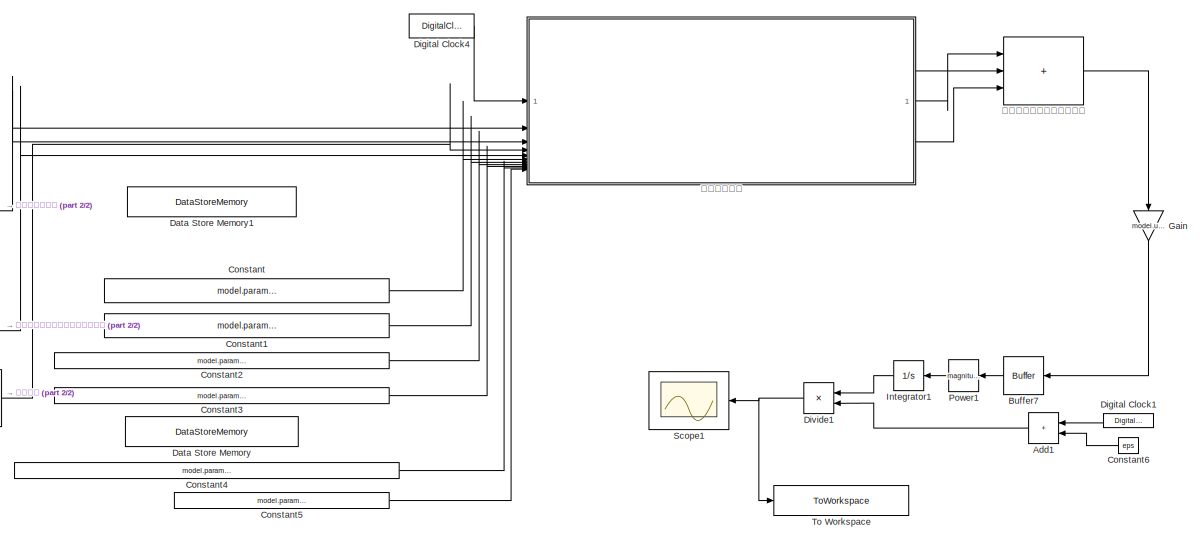
[diagram: root canvas - part 1/2, center side, full height]
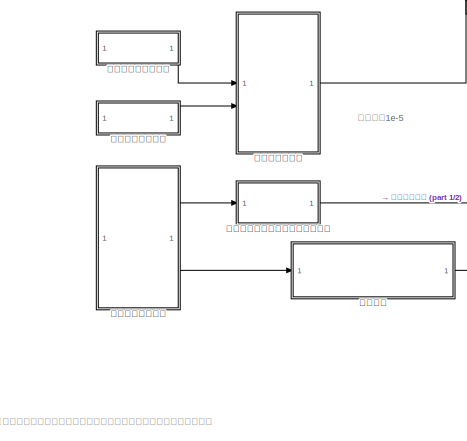
[diagram: root canvas - part 2/2, left side, full height]
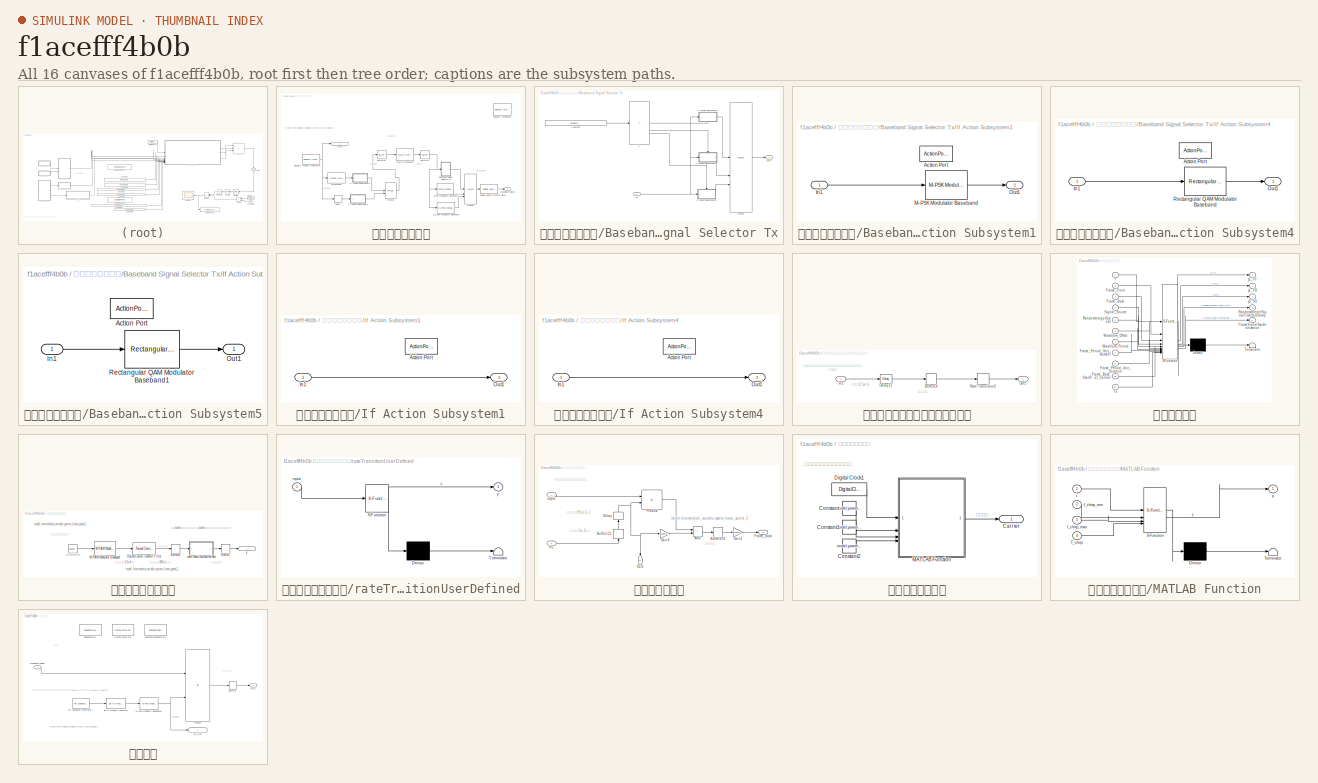
[diagram: thumbnail index - all 16 canvases of the model, root first then tree order]
MODEL slx_f1acefff4b0b
KIND model
CONFIG AbsTol = auto
CONFIG EnableMultiTasking = off
CONFIG FixedStep = auto
CONFIG InitFcn = Parameter_Initialize_6
CONFIG MaxStep = auto
CONFIG MinStep = auto
CONFIG RelTol = 1e-3
CONFIG SampleTimeConstraint = Unconstrained
CONFIG SolverName = VariableStepAuto
CONFIG StartTime = 0.0
CONFIG StopTime = 0.1
BLOCK [Sum] Add1
  IconShape = rectangular
  NameLocation = top
BLOCK [Buffer] Buffer7
  N = 1
  NameLocation = top
  OutputFrames = off
BLOCK [Constant] Constant
  Value = model.parameter.Transmit_timing_control.Waveform_Offset
BLOCK [Constant] Constant1
  Value = model.parameter.Transmit_timing_control.Waveform_Period
BLOCK [Constant] Constant2
  Value = model.parameter.Transmit_timing_control.Frame_Period_Unit_Number
BLOCK [Constant] Constant3
  Value = model.parameter.Transmit_timing_control.Frame_Period_Unit_Duration
BLOCK [Constant] Constant4
  Value = model.parameter.Transmit_timing_control.Frame_Back_StartPoint_Offset_Control
BLOCK [Constant] Constant5
  Value = model.parameter.Transmit_timing_control.Ts
BLOCK [Constant] Constant6
  NameLocation = top
  SampleTime = model.Intermediate_variable.system_frame_speed_3
  Value = eps
BLOCK [DataStoreMemory] Data Store Memory
  DataStoreName = Waveform_Generation_Flag_Transmit
  OutDataTypeStr = int8
  ShowAdditionalParam = off
  SignalType = real
  WriteAfterWriteMsg = warning
BLOCK [DataStoreMemory] Data Store Memory1
  DataStoreName = Waveform_Generation_Flag_Receive
  OutDataTypeStr = int8
  ShowAdditionalParam = off
  SignalType = real
  WriteAfterWriteMsg = warning
BLOCK [DigitalClock] Digital Clock1
  NameLocation = top
  SampleTime = model.Intermediate_variable.system_frame_speed_3
BLOCK [DigitalClock] Digital Clock4
  SampleTime = model.parameter.Digital_Clock4.Ts
BLOCK [Product] Divide1
  Inputs = */
  NameLocation = top
BLOCK [Gain] Gain
  Gain = model.user_defined.TR.Sig_power_controller_coeffience
  NameLocation = left
BLOCK [Integrator] Integrator1
  NameLocation = top
BLOCK [Math] Power1
  NameLocation = top
  Operator = magnitude^2
BLOCK [Scope] Scope1
  Floating = off
  NameLocation = top
  NumInputPorts = 1
  ScopeSpecificationString = Simulink.scopes.TimeScopeBlockCfg('CurrentConfiguration', extmgr.ConfigurationSet(extmgr.Configuration('Core','General UI',true),extmgr.Configuration('Core','Source UI',true),extmgr.Configuration('Sources','WiredSimulink',true),extmgr.Configuration('Visuals','Time Domain',true,'SerializedDisplays',{struct('MinYLimReal','-0.01829','MaxYLimReal','0.16458','YLabelReal','','MinYLimMag','0.00000','MaxY...<+1356ch>
BLOCK [ToWorkspace] To Workspace
  FixptAsFi = on
  MaxDataPoints = inf
  SampleTime = -1
  SaveFormat = Timeseries
  VariableName = power_estimation_result
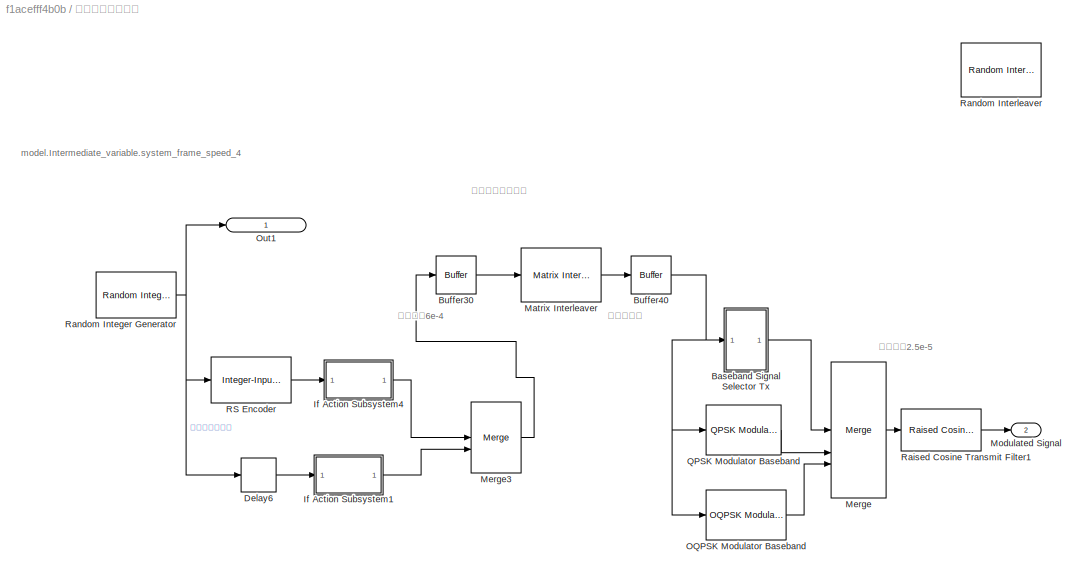
BLOCK [SubSystem] 信源部分基带调制
BLOCK [SubSystem] 信源部分基带调制/Baseband Signal Selector Tx
BLOCK [Constant] 信源部分基带调制/Baseband Signal Selector Tx/Constant
  Value = model.user_defined.TR.Baseband_Modulation_type
BLOCK [If] 信源部分基带调制/Baseband Signal Selector Tx/If
  ElseIfExpressions = u1 == 2
  IfExpression = u1 == 1
BLOCK [SubSystem] 信源部分基带调制/Baseband Signal Selector Tx/If Action Subsystem1
  TreatAsAtomicUnit = on
BLOCK [ActionPort] 信源部分基带调制/Baseband Signal Selector Tx/If Action Subsystem1/Action Port
  ActionPortLabel = elseif(u1 == 2)
BLOCK [Inport] 信源部分基带调制/Baseband Signal Selector Tx/If Action Subsystem1/In1
BLOCK [Reference] 信源部分基带调制/Baseband Signal Selector Tx/If Action Subsystem1/M-PSK Modulator Baseband  REF=commdigbbndpm3/M-PSK
Modulator
Baseband
  SourceBlock = commdigbbndpm3/M-PSK\nModulator\nBaseband
  SourceType = M-PSK Modulator Baseband
BLOCK [Outport] 信源部分基带调制/Baseband Signal Selector Tx/If Action Subsystem1/Out1
BLOCK [SubSystem] 信源部分基带调制/Baseband Signal Selector Tx/If Action Subsystem4
  TreatAsAtomicUnit = on
BLOCK [ActionPort] 信源部分基带调制/Baseband Signal Selector Tx/If Action Subsystem4/Action Port
  ActionPortLabel = if(u1 == 1)
BLOCK [Inport] 信源部分基带调制/Baseband Signal Selector Tx/If Action Subsystem4/In1
BLOCK [Outport] 信源部分基带调制/Baseband Signal Selector Tx/If Action Subsystem4/Out1
BLOCK [Reference] 信源部分基带调制/Baseband Signal Selector Tx/If Action Subsystem4/Rectangular QAM Modulator Baseband  REF=commdigbbndam3/Rectangular QAM
Modulator
Baseband
  LibrarySourceBlock = commhdldigbbndam/Rectangular QAM\nModulator\nBaseband
  SourceBlock = commdigbbndam3/Rectangular QAM\nModulator\nBaseband
  SourceType = Rectangular QAM Modulator Baseband
BLOCK [SubSystem] 信源部分基带调制/Baseband Signal Selector Tx/If Action Subsystem5
  TreatAsAtomicUnit = on
BLOCK [ActionPort] 信源部分基带调制/Baseband Signal Selector Tx/If Action Subsystem5/Action Port
  ActionPortLabel = else
BLOCK [Inport] 信源部分基带调制/Baseband Signal Selector Tx/If Action Subsystem5/In1
BLOCK [Outport] 信源部分基带调制/Baseband Signal Selector Tx/If Action Subsystem5/Out1
BLOCK [Reference] 信源部分基带调制/Baseband Signal Selector Tx/If Action Subsystem5/Rectangular QAM Modulator Baseband1  REF=commdigbbndam3/Rectangular QAM
Modulator
Baseband
  LibrarySourceBlock = commhdldigbbndam/Rectangular QAM\nModulator\nBaseband
  SourceBlock = commdigbbndam3/Rectangular QAM\nModulator\nBaseband
  SourceType = Rectangular QAM Modulator Baseband
BLOCK [Inport] 信源部分基带调制/Baseband Signal Selector Tx/In1
BLOCK [Merge] 信源部分基带调制/Baseband Signal Selector Tx/Merge
  Inputs = 3
BLOCK [Outport] 信源部分基带调制/Baseband Signal Selector Tx/Out1
BLOCK [Buffer] 信源部分基带调制/Buffer30
  N = model.parameter.Buffer30.Output_buffer_size
  OutputFrames = off
BLOCK [Buffer] 信源部分基带调制/Buffer40
  N = model.parameter.Buffer40.Output_buffer_size
  OutputFrames = off
BLOCK [Delay] 信源部分基带调制/Delay6
  Commented = on
  DelayLength = 0
  InitialCondition = 0
  InputPortMap = u0
BLOCK [SubSystem] 信源部分基带调制/If Action Subsystem1
  TreatAsAtomicUnit = on
BLOCK [ActionPort] 信源部分基带调制/If Action Subsystem1/Action Port
BLOCK [Inport] 信源部分基带调制/If Action Subsystem1/In1
BLOCK [Outport] 信源部分基带调制/If Action Subsystem1/Out1
BLOCK [SubSystem] 信源部分基带调制/If Action Subsystem4
  TreatAsAtomicUnit = on
BLOCK [ActionPort] 信源部分基带调制/If Action Subsystem4/Action Port
BLOCK [Inport] 信源部分基带调制/If Action Subsystem4/In1
BLOCK [Outport] 信源部分基带调制/If Action Subsystem4/Out1
BLOCK [Reference] 信源部分基带调制/Matrix Interleaver  REF=commblkintrlv2/Matrix
Interleaver
  SourceBlock = commblkintrlv2/Matrix\nInterleaver
  SourceType = Matrix Interleaver
  StatePerturbationForJacobian = 1.0e-05
BLOCK [Merge] 信源部分基带调制/Merge
  Inputs = 3
BLOCK [Merge] 信源部分基带调制/Merge3
BLOCK [Outport] 信源部分基带调制/Modulated Signal
  Port = 2
BLOCK [Reference] 信源部分基带调制/OQPSK Modulator Baseband  REF=commdigbbndpm3/OQPSK
Modulator
Baseband
  Commented = on
  SourceBlock = commdigbbndpm3/OQPSK\nModulator\nBaseband
  SourceType = OQPSK Modulator Baseband
  UserDataPersistent = on
BLOCK [Outport] 信源部分基带调制/Out1
  IconDisplay = Signal name
BLOCK [Reference] 信源部分基带调制/QPSK Modulator Baseband  REF=commdigbbndpm3/QPSK
Modulator
Baseband
  Commented = on
  SourceBlock = commdigbbndpm3/QPSK\nModulator\nBaseband
  SourceType = QPSK Modulator Baseband
BLOCK [Reference] 信源部分基带调制/RS Encoder  REF=commblkcod2/Integer-Input
RS Encoder
  SourceBlock = commblkcod2/Integer-Input\nRS Encoder
  SourceType = Integer-Input RS Encoder
BLOCK [Reference] 信源部分基带调制/Raised Cosine Transmit Filter1  REF=commfilt2/Raised Cosine
Transmit Filter
  SourceBlock = commfilt2/Raised Cosine\nTransmit Filter
  SourceType = Raised Cosine Transmit Filter
BLOCK [Reference] 信源部分基带调制/Random Integer Generator  REF=commrandsrc3/Random Integer
Generator
  SourceBlock = commrandsrc3/Random Integer\nGenerator
  SourceType = Random Integer Generator
BLOCK [Reference] 信源部分基带调制/Random Interleaver  REF=commblkintrlv2/Random
Interleaver
  Commented = on
  SourceBlock = commblkintrlv2/Random\nInterleaver
  SourceType = Random Interleaver
  StatePerturbationForJacobian = 1.0e-05
BLOCK [SubSystem] 信源随机码混合相加前的延时同步
BLOCK [Buffer] 信源随机码混合相加前的延时同步/Buffer14
  N = model.parameter.Buffer14.Output_buffer_size
  OutputFrames = off
BLOCK [Reference] 信源随机码混合相加前的延时同步/Delay11  REF=dspobslib/Delay
  SourceBlock = dspobslib/Delay
  SourceType = Delay
  UserDataPersistent = on
BLOCK [Inport] 信源随机码混合相加前的延时同步/In1
BLOCK [Outport] 信源随机码混合相加前的延时同步/Out1
BLOCK [RateTransition] 信源随机码混合相加前的延时同步/Rate Transition2
  OutPortSampleTime = model.Intermediate_variable.system_frame_speed_3
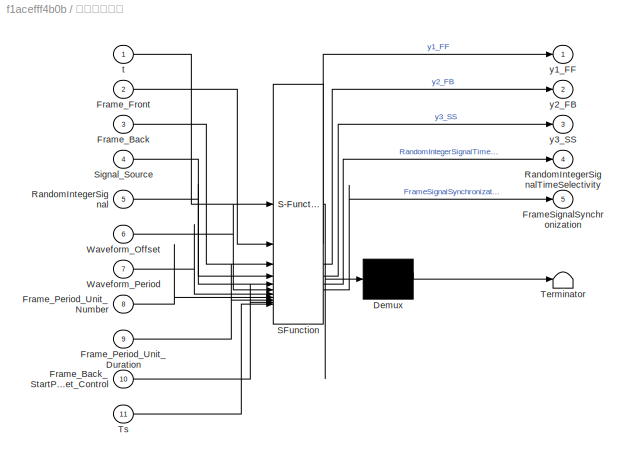
BLOCK [SubSystem] 发射时序控制
  ErrorFcn = Stateflow.Translate.translate
  LibrarySourceBlock = simulink/User-Defined\nFunctions/MATLAB Function
  PermitHierarchicalResolution = ExplicitOnly
  SFBlockType = MATLAB Function
  TreatAsAtomicUnit = on
BLOCK [Demux] 发射时序控制/ Demux 
  Outputs = 1
BLOCK [S-Function] 发射时序控制/ SFunction 
  EnableBusSupport = on
  FunctionName = sf_sfun
  PortCounts = [11 6]
  SFcnIsStateOwnerBlock = off
  SFunctionDeploymentMode = off
  Tag = Stateflow S-Function 2
BLOCK [Terminator] 发射时序控制/ Terminator 
BLOCK [Outport] 发射时序控制/FrameSignalSynchronization
  Port = 5
BLOCK [Inport] 发射时序控制/Frame_Back
  Port = 3
BLOCK [Inport] 发射时序控制/Frame_Back_StartPoint_Offset_Control
  Port = 10
BLOCK [Inport] 发射时序控制/Frame_Front
  Port = 2
BLOCK [Inport] 发射时序控制/Frame_Period_Unit_Duration
  Port = 9
BLOCK [Inport] 发射时序控制/Frame_Period_Unit_Number
  Port = 8
BLOCK [Inport] 发射时序控制/RandomIntegerSignal
  Port = 5
BLOCK [Outport] 发射时序控制/RandomIntegerSignalTimeSelectivity
  Port = 4
BLOCK [Inport] 发射时序控制/Signal_Source
  Port = 4
BLOCK [Inport] 发射时序控制/Ts
  Port = 11
BLOCK [Inport] 发射时序控制/Waveform_Offset
  Port = 6
BLOCK [Inport] 发射时序控制/Waveform_Period
  Port = 7
BLOCK [Inport] 发射时序控制/t
BLOCK [Outport] 发射时序控制/y1_FF
BLOCK [Outport] 发射时序控制/y2_FB
  Port = 2
BLOCK [Outport] 发射时序控制/y3_SS
  Port = 3
BLOCK [SubSystem] 帧信号基带调制模块
BLOCK [Buffer] 帧信号基带调制模块/Buffer1
  N = model.parameter.Buffer1.Output_buffer_size
  OutputFrames = off
BLOCK [Buffer] 帧信号基带调制模块/Buffer12
  N = model.parameter.Buffer12.Output_buffer_size
  OutputFrames = off
BLOCK [Reference] 帧信号基带调制模块/M-PAM Modulator Baseband  REF=commdigbbndam3/M-PAM
Modulator
Baseband
  SourceBlock = commdigbbndam3/M-PAM\nModulator\nBaseband
  SourceType = M-PAM Modulator Baseband
BLOCK [Reference] 帧信号基带调制模块/Raised Cosine Transmit Filter  REF=commfilt2/Raised Cosine
Transmit Filter
  SourceBlock = commfilt2/Raised Cosine\nTransmit Filter
  SourceType = Raised Cosine Transmit Filter
BLOCK [SubSystem] 帧信号基带调制模块/rateTransitionUserDefined
  ErrorFcn = Stateflow.Translate.translate
  LibrarySourceBlock = simulink/User-Defined\nFunctions/MATLAB Function
  PermitHierarchicalResolution = ExplicitOnly
  SFBlockType = MATLAB Function
  TreatAsAtomicUnit = on
BLOCK [Demux] 帧信号基带调制模块/rateTransitionUserDefined/ Demux 
  Outputs = 1
BLOCK [S-Function] 帧信号基带调制模块/rateTransitionUserDefined/ SFunction 
  EnableBusSupport = on
  FunctionName = sf_sfun
  PortCounts = [1 2]
  SFcnIsStateOwnerBlock = off
  SFunctionDeploymentMode = off
  Tag = Stateflow S-Function 5
BLOCK [Terminator] 帧信号基带调制模块/rateTransitionUserDefined/ Terminator 
BLOCK [Inport] 帧信号基带调制模块/rateTransitionUserDefined/input
BLOCK [Outport] 帧信号基带调制模块/rateTransitionUserDefined/y
BLOCK [Outport] 帧信号基带调制模块/y
  IconDisplay = Signal name
BLOCK [Reference] 帧信号基带调制模块/帧信号编码码元  REF=simulink/Sources/Repeating
Sequence
Stair
  SourceBlock = simulink/Sources/Repeating\nSequence\nStair
  SourceType = Repeating Sequence Stair
BLOCK [SubSystem] 帧信号射频调制
BLOCK [Sum] 帧信号射频调制/Add
  IconShape = rectangular
BLOCK [Buffer] 帧信号射频调制/Buffer100
  N = model.parameter.Buffer100.Output_buffer_size
  OutputFrames = off
BLOCK [Buffer] 帧信号射频调制/Buffer121
  N = model.parameter.Buffer121.Output_buffer_size
  NameLocation = right
  OutputFrames = off
BLOCK [Delay] 帧信号射频调制/Delay
  DelayLength = model.parameter.Delay.delay_length
  InputPortMap = u0
  InputProcessing = Columns as channels (frame based)
  NameLocation = right
BLOCK [Outport] 帧信号射频调制/Frame_Back
BLOCK [Gain] 帧信号射频调制/Gain1
  Gain = model.parameter.Gain1.value
BLOCK [Gain] 帧信号射频调制/Gain3
  Gain = model.parameter.Gain3.value
BLOCK [Inport] 帧信号射频调制/In2
  Port = 2
BLOCK [Outport] 帧信号射频调制/Out2
  NameLocation = left
  Port = 2
BLOCK [Product] 帧信号射频调制/Product
BLOCK [Inport] 帧信号射频调制/input
BLOCK [SubSystem] 本地载波生成模块
BLOCK [Outport] 本地载波生成模块/Carrier
  IconDisplay = Signal name
BLOCK [Constant] 本地载波生成模块/Constant
  Value = model.parameter.Func1.f_chirp_min
BLOCK [Constant] 本地载波生成模块/Constant1
  Value = model.parameter.Func1.f_chirp_max
BLOCK [Constant] 本地载波生成模块/Constant2
  Value = model.parameter.Func1.T_chirp
BLOCK [DigitalClock] 本地载波生成模块/Digital Clock1
  SampleTime = model.parameter.Digital_Clock2.CarrierTs
BLOCK [SubSystem] 本地载波生成模块/MATLAB Function
  ErrorFcn = Stateflow.Translate.translate
  LibrarySourceBlock = simulink/User-Defined\nFunctions/MATLAB Function
  PermitHierarchicalResolution = ExplicitOnly
  SFBlockType = MATLAB Function
  TreatAsAtomicUnit = on
BLOCK [Demux] 本地载波生成模块/MATLAB Function/ Demux 
  Outputs = 1
BLOCK [S-Function] 本地载波生成模块/MATLAB Function/ SFunction 
  EnableBusSupport = on
  FunctionName = sf_sfun
  PortCounts = [4 2]
  SFcnIsStateOwnerBlock = off
  SFunctionDeploymentMode = off
  Tag = Stateflow S-Function 1
BLOCK [Terminator] 本地载波生成模块/MATLAB Function/ Terminator 
BLOCK [Inport] 本地载波生成模块/MATLAB Function/T_chirp
  Port = 4
BLOCK [Inport] 本地载波生成模块/MATLAB Function/f_chirp_max
  Port = 3
BLOCK [Inport] 本地载波生成模块/MATLAB Function/f_chirp_min
  Port = 2
BLOCK [Inport] 本地载波生成模块/MATLAB Function/t
BLOCK [Outport] 本地载波生成模块/MATLAB Function/y
BLOCK [Sum] 经发射机调制后的发射信号
  IconShape = rectangular
  Inputs = +++
BLOCK [SubSystem] 跳频调制
BLOCK [Reference] 跳频调制/Baseband PLL  REF=commsynccomp2/Baseband
PLL
  Commented = on
  SourceBlock = commsynccomp2/Baseband\nPLL
  SourceType = Baseband PLL
BLOCK [Reference] 跳频调制/Bit to Integer Converter  REF=simulink/Logic and Bit
Operations/Bit to Integer
Converter
  SourceBlock = simulink/Logic and Bit\nOperations/Bit to Integer\nConverter
  SourceType = Bit to Integer Converter
BLOCK [Buffer] 跳频调制/Buffer2
  N = model.parameter.Buffer2.Output_buffer_size
  OutputFrames = off
BLOCK [Reference] 跳频调制/Charge Pump PLL  REF=commsynccomp2/Charge Pump
PLL
  Commented = on
  SourceBlock = commsynccomp2/Charge Pump\nPLL
  SourceType = Charge Pump PLL
BLOCK [Reference] 跳频调制/Linearized Baseband PLL  REF=commsynccomp2/Linearized Baseband
PLL
  Commented = on
  SourceBlock = commsynccomp2/Linearized Baseband\nPLL
  SourceType = Linearized Baseband PLL
BLOCK [Reference] 跳频调制/M-FSK Modulator Baseband1  REF=commdigbbndfm2/M-FSK
Modulator
Baseband
  SourceBlock = commdigbbndfm2/M-FSK\nModulator\nBaseband
  SourceType = M-FSK Modulator Baseband
  UserDataPersistent = on
BLOCK [Inport] 跳频调制/Modulated Signal
BLOCK [Outport] 跳频调制/Out1
BLOCK [Reference] 跳频调制/PN Sequence Generator1  REF=commseqgen3/PN Sequence
Generator
  SourceBlock = commseqgen3/PN Sequence\nGenerator
  SourceType = PN Sequence Generator
BLOCK [Outport] 跳频调制/PN_Out
  IconDisplay = Signal name
  Port = 2
BLOCK [Product] 跳频调制/Product
ANNOTATION (root): 此处延时1e-5
ANNOTATION (root): 该链路主要是用来测量发射端功率，以设置高斯白噪声模块的输入功率。
ANNOTATION 信源部分基带调制: model.Intermediate_variable.system_frame_speed_4
ANNOTATION 信源部分基带调制: 信源部分基带调制
ANNOTATION 信源部分基带调制: 此处延时2.5e-5
ANNOTATION 信源部分基带调制: 此处延时6e-4
ANNOTATION 信源部分基带调制: 此处无延时
ANNOTATION 信源随机码混合相加前的延时同步: 此处延时2.5e-5
ANNOTATION 信源随机码混合相加前的延时同步: 此处无延时
ANNOTATION 信源随机码混合相加前的延时同步: 该条支路对发送端的随机码序列进行同步时域处理，用于判断链路 的误码率
ANNOTATION 帧信号基带调制模块: model.Intermediate_variable.system_frame_speed_1
ANNOTATION 帧信号基带调制模块: model.Intermediate_variable.system_frame_speed_2
ANNOTATION 帧信号基带调制模块: 帧信号基带调制模块
ANNOTATION 帧信号基带调制模块: 此处buffer的设计需要让插值后buffer的速率等于帧信号的编码速率
ANNOTATION 帧信号基带调制模块: 此处产生了2.5e-4延时
ANNOTATION 帧信号基带调制模块: 此处产生了200e-5的延时
ANNOTATION 帧信号基带调制模块: 此处无延时
ANNOTATION 帧信号射频调制: model.Intermediate_variable.system_frame_speed_3
ANNOTATION 帧信号射频调制: 射频调制模拟以及部分本地载波相加
ANNOTATION 帧信号射频调制: 此处产生了195e-5延时
ANNOTATION 帧信号射频调制: 此处产生了5e-5延时
ANNOTATION 帧信号射频调制: 此处无延时
ANNOTATION 本地载波生成模块: 帧信号对应的本地载波生成
ANNOTATION 跳频调制: model.Intermediate_variable.system_frame_speed_4
ANNOTATION 跳频调制: 产生跳频序列，并生成基带跳频，跳频间隔是1MHz,跳频范围是[0.5MHz,7.5MHz]
ANNOTATION 跳频调制: 此处无延时
ANNOTATION 跳频调制: 跳频
LINE Add1:1 -> Divide1:2
LINE Buffer7:1 -> Power1:1
LINE Constant1:1 -> 发射时序控制:7
LINE Constant2:1 -> 发射时序控制:8
LINE Constant3:1 -> 发射时序控制:9
LINE Constant4:1 -> 发射时序控制:10
LINE Constant5:1 -> 发射时序控制:11
LINE Constant6:1 -> Add1:2
LINE Constant:1 -> 发射时序控制:6
LINE Digital Clock1:1 -> Add1:1
LINE Digital Clock4:1 -> 发射时序控制:1
NET Divide1:1 -> Scope1:1, To Workspace:1
LINE Gain:1 -> Buffer7:1
LINE Integrator1:1 -> Divide1:1
LINE Power1:1 -> Integrator1:1
LINE 信源部分基带调制/Baseband Signal Selector Tx/Constant:1 -> 信源部分基带调制/Baseband Signal Selector Tx/If:1
LINE 信源部分基带调制/Baseband Signal Selector Tx/If Action Subsystem1/In1:1 -> 信源部分基带调制/Baseband Signal Selector Tx/If Action Subsystem1/M-PSK Modulator Baseband:1
LINE 信源部分基带调制/Baseband Signal Selector Tx/If Action Subsystem1/M-PSK Modulator Baseband:1 -> 信源部分基带调制/Baseband Signal Selector Tx/If Action Subsystem1/Out1:1
LINE 信源部分基带调制/Baseband Signal Selector Tx/If Action Subsystem1:1 -> 信源部分基带调制/Baseband Signal Selector Tx/Merge:2
LINE 信源部分基带调制/Baseband Signal Selector Tx/If Action Subsystem4/In1:1 -> 信源部分基带调制/Baseband Signal Selector Tx/If Action Subsystem4/Rectangular QAM Modulator Baseband:1
LINE 信源部分基带调制/Baseband Signal Selector Tx/If Action Subsystem4/Rectangular QAM Modulator Baseband:1 -> 信源部分基带调制/Baseband Signal Selector Tx/If Action Subsystem4/Out1:1
LINE 信源部分基带调制/Baseband Signal Selector Tx/If Action Subsystem4:1 -> 信源部分基带调制/Baseband Signal Selector Tx/Merge:1
LINE 信源部分基带调制/Baseband Signal Selector Tx/If Action Subsystem5/In1:1 -> 信源部分基带调制/Baseband Signal Selector Tx/If Action Subsystem5/Rectangular QAM Modulator Baseband1:1
LINE 信源部分基带调制/Baseband Signal Selector Tx/If Action Subsystem5/Rectangular QAM Modulator Baseband1:1 -> 信源部分基带调制/Baseband Signal Selector Tx/If Action Subsystem5/Out1:1
LINE 信源部分基带调制/Baseband Signal Selector Tx/If Action Subsystem5:1 -> 信源部分基带调制/Baseband Signal Selector Tx/Merge:3
LINE 信源部分基带调制/Baseband Signal Selector Tx/If:1 -> 信源部分基带调制/Baseband Signal Selector Tx/If Action Subsystem4:ifaction
LINE 信源部分基带调制/Baseband Signal Selector Tx/If:2 -> 信源部分基带调制/Baseband Signal Selector Tx/If Action Subsystem1:ifaction
LINE 信源部分基带调制/Baseband Signal Selector Tx/If:3 -> 信源部分基带调制/Baseband Signal Selector Tx/If Action Subsystem5:ifaction
NET 信源部分基带调制/Baseband Signal Selector Tx/In1:1 -> 信源部分基带调制/Baseband Signal Selector Tx/If Action Subsystem1:1, 信源部分基带调制/Baseband Signal Selector Tx/If Action Subsystem4:1, 信源部分基带调制/Baseband Signal Selector Tx/If Action Subsystem5:1
LINE 信源部分基带调制/Baseband Signal Selector Tx/Merge:1 -> 信源部分基带调制/Baseband Signal Selector Tx/Out1:1
LINE 信源部分基带调制/Baseband Signal Selector Tx:1 -> 信源部分基带调制/Merge:1
LINE 信源部分基带调制/Buffer30:1 -> 信源部分基带调制/Matrix Interleaver:1
NET 信源部分基带调制/Buffer40:1 -> 信源部分基带调制/Baseband Signal Selector Tx:1, 信源部分基带调制/OQPSK Modulator Baseband:1, 信源部分基带调制/QPSK Modulator Baseband:1
LINE 信源部分基带调制/Delay6:1 -> 信源部分基带调制/If Action Subsystem1:1
LINE 信源部分基带调制/If Action Subsystem1/In1:1 -> 信源部分基带调制/If Action Subsystem1/Out1:1
LINE 信源部分基带调制/If Action Subsystem1:1 -> 信源部分基带调制/Merge3:2
LINE 信源部分基带调制/If Action Subsystem4/In1:1 -> 信源部分基带调制/If Action Subsystem4/Out1:1
LINE 信源部分基带调制/If Action Subsystem4:1 -> 信源部分基带调制/Merge3:1
LINE 信源部分基带调制/Matrix Interleaver:1 -> 信源部分基带调制/Buffer40:1
LINE 信源部分基带调制/Merge3:1 -> 信源部分基带调制/Buffer30:1
LINE 信源部分基带调制/Merge:1 -> 信源部分基带调制/Raised Cosine Transmit Filter1:1
LINE 信源部分基带调制/OQPSK Modulator Baseband:1 -> 信源部分基带调制/Merge:3
LINE 信源部分基带调制/QPSK Modulator Baseband:1 -> 信源部分基带调制/Merge:2
LINE 信源部分基带调制/RS Encoder:1 -> 信源部分基带调制/If Action Subsystem4:1
LINE 信源部分基带调制/Raised Cosine Transmit Filter1:1 -> 信源部分基带调制/Modulated Signal:1
NET 信源部分基带调制/Random Integer Generator:1 -> 信源部分基带调制/Delay6:1, 信源部分基带调制/Out1:1, 信源部分基带调制/RS Encoder:1
LINE 信源部分基带调制:1 -> 信源随机码混合相加前的延时同步:1
LINE 信源部分基带调制:2 -> 跳频调制:1
LINE 信源随机码混合相加前的延时同步/Buffer14:1 -> 信源随机码混合相加前的延时同步/Rate Transition2:1
LINE 信源随机码混合相加前的延时同步/Delay11:1 -> 信源随机码混合相加前的延时同步/Buffer14:1
LINE 信源随机码混合相加前的延时同步/In1:1 -> 信源随机码混合相加前的延时同步/Delay11:1
LINE 信源随机码混合相加前的延时同步/Rate Transition2:1 -> 信源随机码混合相加前的延时同步/Out1:1
LINE 信源随机码混合相加前的延时同步:1 -> 发射时序控制:5
LINE 发射时序控制:1 -> 经发射机调制后的发射信号:1
LINE 发射时序控制:2 -> 经发射机调制后的发射信号:2
LINE 发射时序控制:3 -> 经发射机调制后的发射信号:3
LINE 帧信号基带调制模块/Buffer12:1 -> 帧信号基带调制模块/rateTransitionUserDefined:1
LINE 帧信号基带调制模块/Buffer1:1 -> 帧信号基带调制模块/y:1
LINE 帧信号基带调制模块/M-PAM Modulator Baseband:1 -> 帧信号基带调制模块/Raised Cosine Transmit Filter:1
LINE 帧信号基带调制模块/Raised Cosine Transmit Filter:1 -> 帧信号基带调制模块/Buffer12:1
LINE 帧信号基带调制模块/rateTransitionUserDefined:1 -> 帧信号基带调制模块/Buffer1:1
LINE 帧信号基带调制模块/帧信号编码码元:1 -> 帧信号基带调制模块/M-PAM Modulator Baseband:1
LINE 帧信号基带调制模块:1 -> 帧信号射频调制:1
LINE 帧信号射频调制/Add:1 -> 帧信号射频调制/Buffer100:1
LINE 帧信号射频调制/Buffer100:1 -> 帧信号射频调制/Gain1:1
LINE 帧信号射频调制/Buffer121:1 -> 帧信号射频调制/Delay:1
NET 帧信号射频调制/Delay:1 -> 帧信号射频调制/Gain3:1, 帧信号射频调制/Out2:1, 帧信号射频调制/Product:2
LINE 帧信号射频调制/Gain1:1 -> 帧信号射频调制/Frame_Back:1
LINE 帧信号射频调制/Gain3:1 -> 帧信号射频调制/Add:2
LINE 帧信号射频调制/In2:1 -> 帧信号射频调制/Buffer121:1
LINE 帧信号射频调制/Product:1 -> 帧信号射频调制/Add:1
LINE 帧信号射频调制/input:1 -> 帧信号射频调制/Product:1
NET 帧信号射频调制:1 -> 发射时序控制:2, 发射时序控制:3
LINE 本地载波生成模块/Constant1:1 -> 本地载波生成模块/MATLAB Function:3
LINE 本地载波生成模块/Constant2:1 -> 本地载波生成模块/MATLAB Function:4
LINE 本地载波生成模块/Constant:1 -> 本地载波生成模块/MATLAB Function:2
LINE 本地载波生成模块/Digital Clock1:1 -> 本地载波生成模块/MATLAB Function:1
LINE 本地载波生成模块/MATLAB Function:1 -> 本地载波生成模块/Carrier:1
LINE 本地载波生成模块:1 -> 帧信号射频调制:2
LINE 经发射机调制后的发射信号:1 -> Gain:1
LINE 跳频调制/Bit to Integer Converter:1 -> 跳频调制/M-FSK Modulator Baseband1:1
LINE 跳频调制/Buffer2:1 -> 跳频调制/Out1:1
NET 跳频调制/M-FSK Modulator Baseband1:1 -> 跳频调制/PN_Out:1, 跳频调制/Product:2
LINE 跳频调制/Modulated Signal:1 -> 跳频调制/Product:1
LINE 跳频调制/PN Sequence Generator1:1 -> 跳频调制/Bit to Integer Converter:1
LINE 跳频调制/Product:1 -> 跳频调制/Buffer2:1
LINE 跳频调制:1 -> 发射时序控制:4
note: NET lines group one-source signal fan-out (src -> all destinations, sorted); 1:1 wires keep LINE
CHART 本地载波生成模块/MATLAB Function states=1 transitions=1
  STATE_LABEL 'eML_blk_kernel()'
  STATE_LABEL 'SCRIPT:\n% function y = carrierGenerator(t)\n%     fc = 5e6;\n%     y = exp(1i*2*pi*fc*t);\n\nfunction y = carrierGenerator(t, f_chirp_min, f_chirp_max, T_chirp)\n    k_chirp = (f_chirp_max-f_chirp_min)/T_chirp;\n    t = mod(t,T_chirp);\n    y = exp(1i*2*pi*(f_chirp_min*t+0.5*k_chirp*t^2));\n\nend\n'
CHART 发射时序控制 states=1 transitions=1
  STATE_LABEL 'eML_blk_kernel()'
  STATE_LABEL 'SCRIPT:\nfunction [y1_FF, y2_FB, y3_SS, RandomIntegerSignalTimeSelectivity, FrameSignalSynchronization] = timeController(t, Frame_Front, Frame_Back, Signal_Source, RandomIntegerSignal, Waveform_Offset, Waveform_Period, Frame_Period_Unit_Number, Frame_Period_Unit_Duration, Frame_Back_StartPoint_Offset_Control, Ts)\nglobal Waveform_Generation_Flag_Transmit;\n\nFrame_Duration = Frame_Period_Unit_Duration...<+2072ch>'
CHART 帧信号基带调制模块/rateTransitionUserDefined states=1 transitions=1
  STATE_LABEL 'eML_blk_kernel()'
  STATE_LABEL 'SCRIPT:\n% function y = carrierGenerator(t)\n%     fc = 5e6;\n%     y = exp(1i*2*pi*fc*t);\n\nfunction y = rateTransition(input)\n    p = 10;\n    q = 1;\n    y = resample(input,p,q);\n%     y(1:100) = repmat(y(100),1,100);\n%     y(end-99:end) = repmat(y(end-99),1,100);\nend\n'
CHART  states=0 transitions=0
CHART  states=0 transitions=0
CHART  states=0 transitions=0
